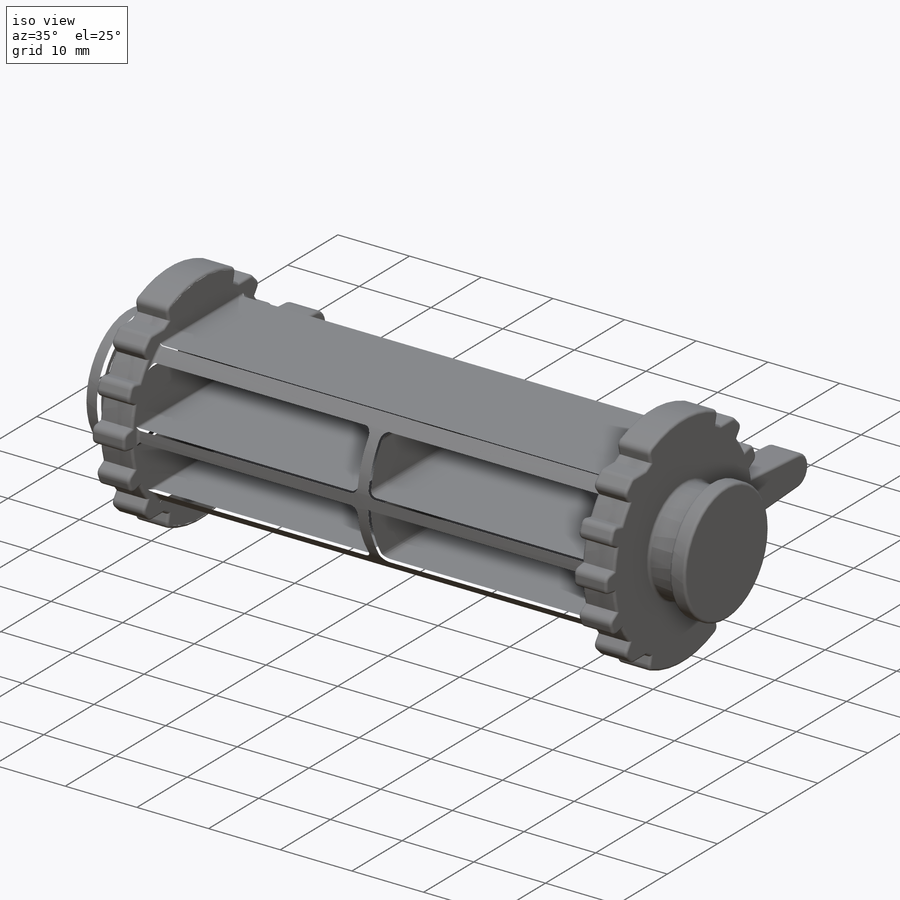
[diagram: iso view]
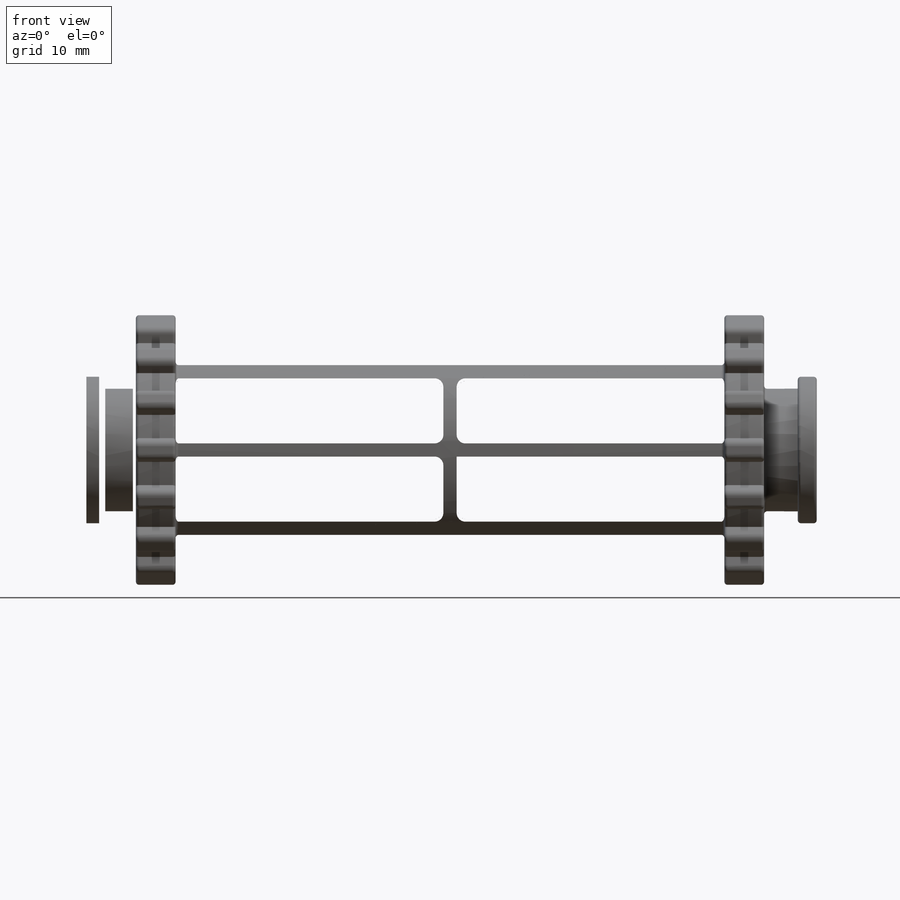
[diagram: front view]
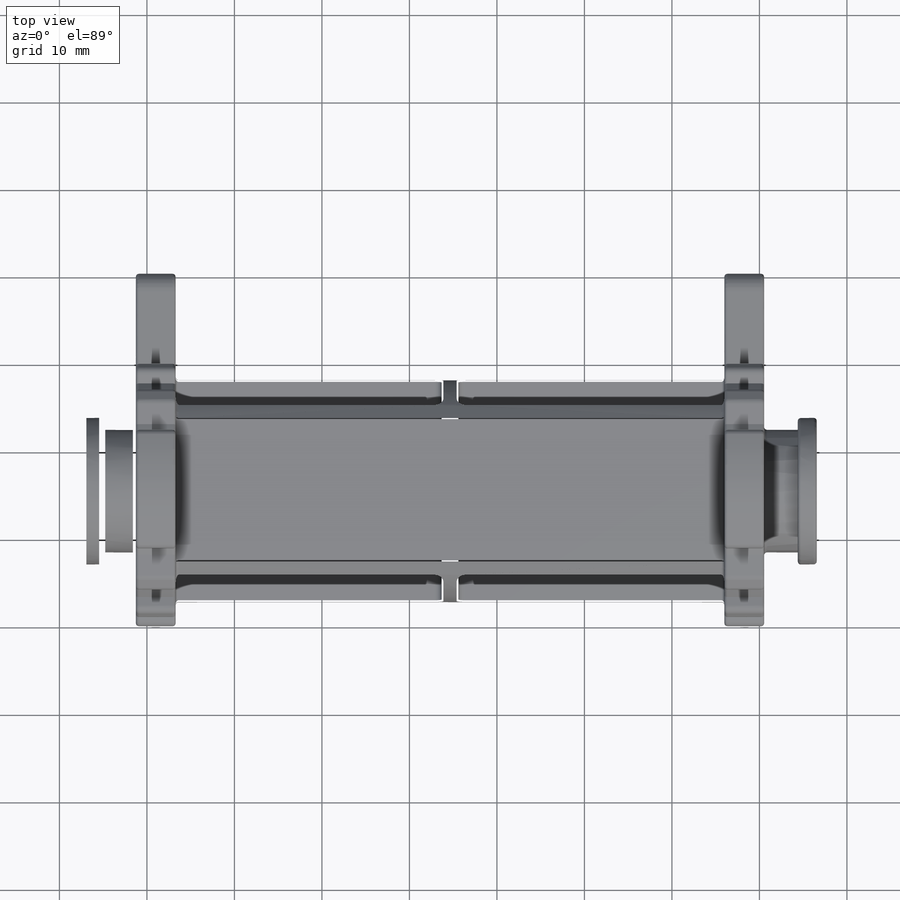
[diagram: top view]
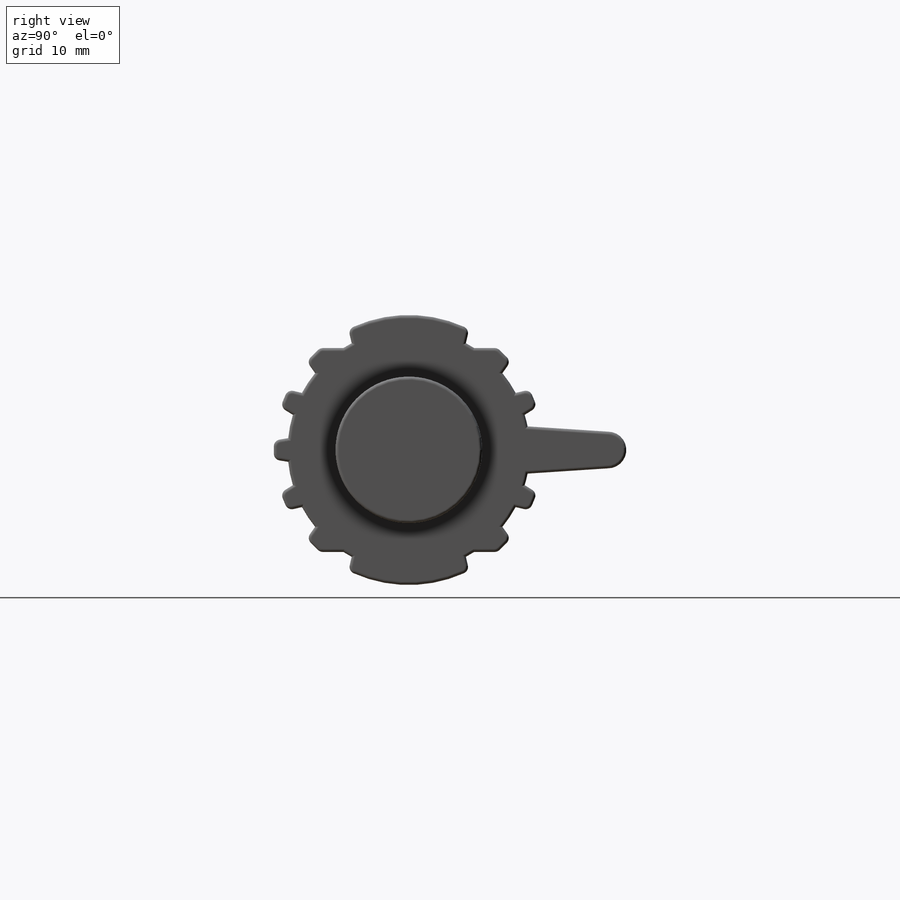
[diagram: right view]
SOLIDWORKS PART (.sldprt)
format: sldprt  version: not decoded by parser v0  size: 2,018,816 bytes
history: native  units: mm
features: sketch x5, fillet x5, cut_extrude x2, extrude x2, material x1, revolve x1 + 1 further entry (+22 scaffold rows collapsed; 3 parser-record rows omitted)
feature tree (42):
  scaffold x22  (default folders/planes/origin — collapsed)
  material  "Material <not specified>"
  "ModelAAirVentCover"
  parser-record x3  (decoder bookkeeping rows leaked as tree rows — omitted from the tree; the rows remain in map.json)
  sketch  "Sketch1"  dims[c1.D1=12.7mm c1.D2=~31.36265mm c1.D3=~31.36265mm c1.D4=4.5339mm c1.D5=4.5339mm c1.D6=15.4305mm c1.D7=41.91mm c1.D8=41.91mm c1.D9=2.159mm c1.D10=2.159mm c1.D11=7.0104mm c2.D6=8.382mm]
  revolve  "Revolve1"  Angle=360deg
  sketch  "Sketch2"  dims[D1=9.7409mm D2=9.7409mm D3=0.9525mm D4=0.9525mm D5=0.9398mm D6=0.9398mm D7=1.8796mm D8=1.8796mm]
  cut_extrude  "Extrude1"  [1 undecoded]
  fillet  "Fillet1"  Radius=0.79375mm
  sketch  "Sketch3"  dims[c1.D1=45.72mm c1.D3=22.86mm c1.D2=15.4305mm c2.D2=15.0deg c3.D2=~9.122905mm c4.D2=11.25deg c5.D2=~6.195548mm c6.D2=15.0deg]
  cut_extrude  "Extrude2"  [1 undecoded]
  sketch  "Sketch4"  dims[D1=45.72mm]
  extrude  "Extrude3"  [1 undecoded]
  sketch  "Sketch6"
  extrude  "Extrude5"  [1 undecoded]
  fillet  "Fillet2"  Radius=0.79375mm
  fillet  "Fillet3"  Radius=0.79375mm
  fillet  "Fillet4"  Radius=0.352778mm
  fillet  "Fillet5"  Radius=0.198437mm
decode coverage: 10 of 15 modeling features carry decoded parameters; 1 rows unclassified (native names shown)
note: ~ marks probable driven/reference dimensions
note: 4 parameter values undecoded
summary: no parameter record found for 4 features
note: suppression state not decoded; provenance and decode notes live in map.json
